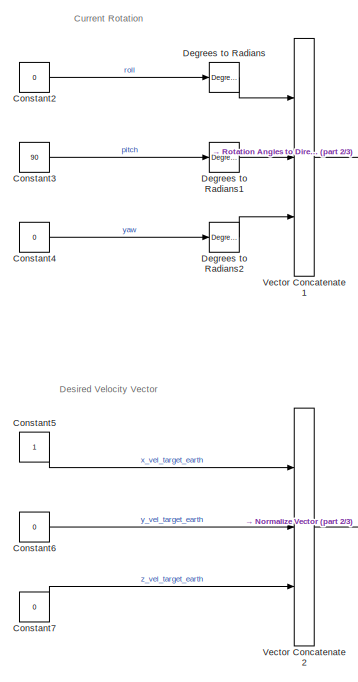
[diagram: root canvas - part 1/3, middle left region]
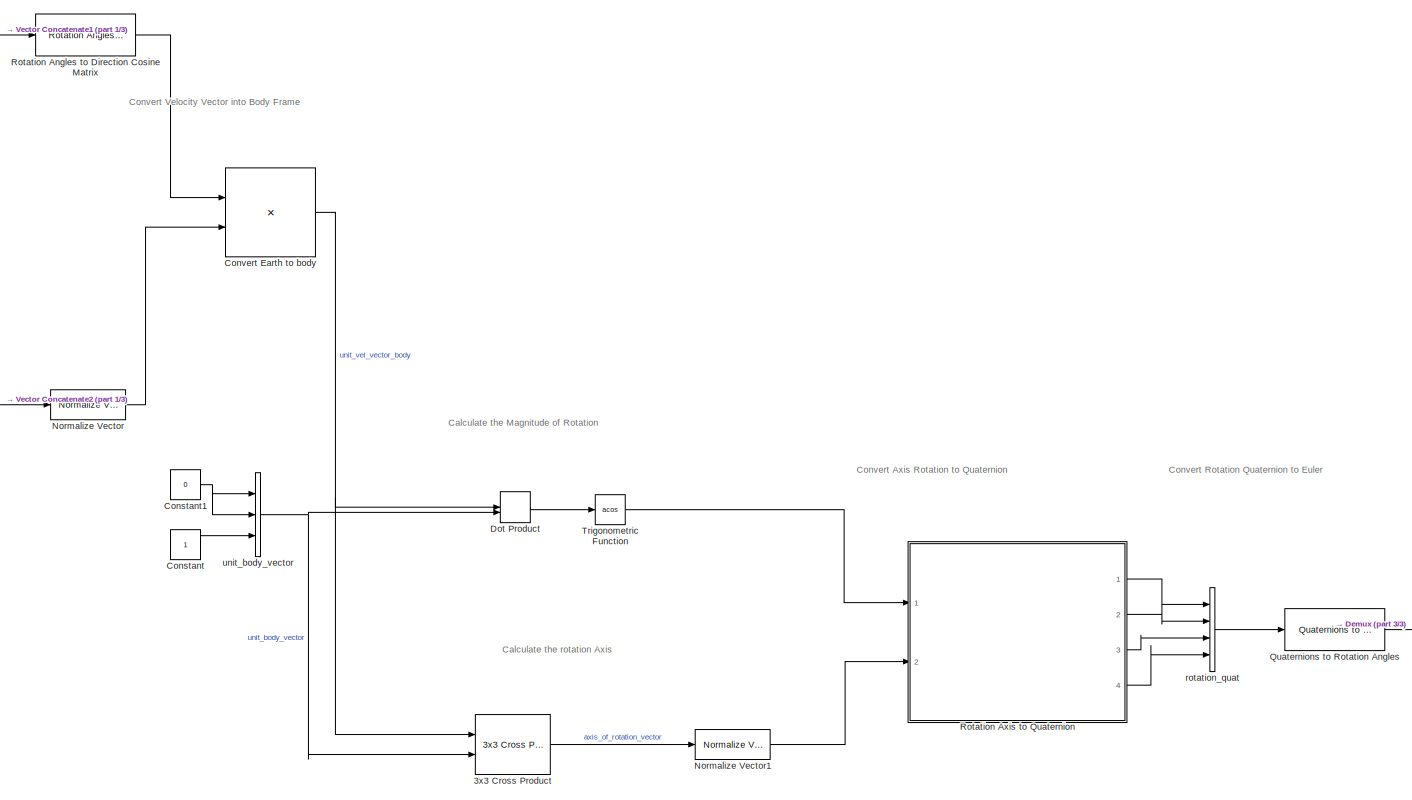
[diagram: root canvas - part 2/3, center side, full height]
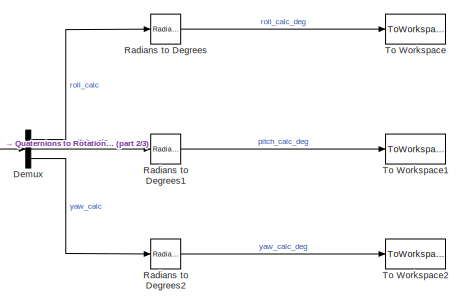
[diagram: root canvas - part 3/3, bottom right region]
MODEL slx_3029f49e60cf
KIND model
CONFIG AbsTol = auto
CONFIG FixedStep = Ts
CONFIG MaxStep = auto
CONFIG MinStep = auto
CONFIG RelTol = 1e-3
CONFIG SampleTimeConstraint = Unconstrained
CONFIG Solver = VariableStepAuto
CONFIG SolverMode = Auto
CONFIG SolverName = VariableStepAuto
CONFIG StartTime = 0.0
CONFIG StopTime = 10
WORKSPACE source: MAT-file member
WORKSPACE MCOS: class17 (value not decoded)
BLOCK [Reference] 3x3 Cross Product  REF=aerolibutil/3x3 Cross Product
  Ports = [2, 1]
  SourceBlock = aerolibutil/3x3 Cross Product
  SourceType = CrossProduct
BLOCK [Constant] Constant
BLOCK [Constant] Constant1
  Value = 0
BLOCK [Constant] Constant2
  Value = 0
BLOCK [Constant] Constant3
  Value = 90
BLOCK [Constant] Constant4
  Value = 0
BLOCK [Constant] Constant5
BLOCK [Constant] Constant6
  Value = 0
BLOCK [Constant] Constant7
  Value = 0
BLOCK [Product] Convert Earth to body
  InputSameDT = off
  Multiplication = Matrix(*)
  OutDataTypeStr = Inherit: Inherit via internal rule
  Ports = [2, 1]
  RndMeth = Floor
  SaturateOnIntegerOverflow = off
BLOCK [Reference] Degrees to Radians  REF=simulink_extras/Transformations/Degrees to
Radians
  Ports = [1, 1]
  SourceBlock = simulink_extras/Transformations/Degrees to\nRadians
  SourceType = DegreesToRadians
BLOCK [Reference] Degrees to Radians1  REF=simulink_extras/Transformations/Degrees to
Radians
  Ports = [1, 1]
  SourceBlock = simulink_extras/Transformations/Degrees to\nRadians
  SourceType = DegreesToRadians
BLOCK [Reference] Degrees to Radians2  REF=simulink_extras/Transformations/Degrees to
Radians
  Ports = [1, 1]
  SourceBlock = simulink_extras/Transformations/Degrees to\nRadians
  SourceType = DegreesToRadians
BLOCK [Demux] Demux
  DisplayOption = bar
  Outputs = 3
  Ports = [1, 3]
BLOCK [DotProduct] Dot Product
  OutDataTypeStr = Inherit: Inherit via internal rule
BLOCK [Reference] Normalize Vector  REF=vrlib/Utilities/Normalize Vector
  Ports = [1, 1]
  SourceBlock = vrlib/Utilities/Normalize Vector
  SourceType = Normalize Vector
BLOCK [Reference] Normalize Vector1  REF=vrlib/Utilities/Normalize Vector
  Ports = [1, 1]
  SourceBlock = vrlib/Utilities/Normalize Vector
  SourceType = Normalize Vector
BLOCK [Reference] Quaternions to Rotation Angles  REF=aerolibtransform2/Quaternions to Rotation Angles
  AttributesFormatString = Rotation Order: %<rotationOrder>
  Ports = [1, 1]
  SourceBlock = aerolibtransform2/Quaternions to Rotation Angles
  SourceType = Quat2Ang
BLOCK [Reference] Radians to Degrees  REF=simulink_extras/Transformations/Radians
to Degrees
  Ports = [1, 1]
  SourceBlock = simulink_extras/Transformations/Radians\nto Degrees
  SourceType = RadiansToDegrees
BLOCK [Reference] Radians to Degrees1  REF=simulink_extras/Transformations/Radians
to Degrees
  Ports = [1, 1]
  SourceBlock = simulink_extras/Transformations/Radians\nto Degrees
  SourceType = RadiansToDegrees
BLOCK [Reference] Radians to Degrees2  REF=simulink_extras/Transformations/Radians
to Degrees
  Ports = [1, 1]
  SourceBlock = simulink_extras/Transformations/Radians\nto Degrees
  SourceType = RadiansToDegrees
BLOCK [Reference] Rotation Angles to Direction Cosine Matrix  REF=aerolibtransform2/Rotation Angles to
Direction Cosine Matrix
  AttributesFormatString = Rotation Order: %<rotationOrder>
  Ports = [1, 1]
  SourceBlock = aerolibtransform2/Rotation Angles to\nDirection Cosine Matrix
  SourceType = Ang2DCM
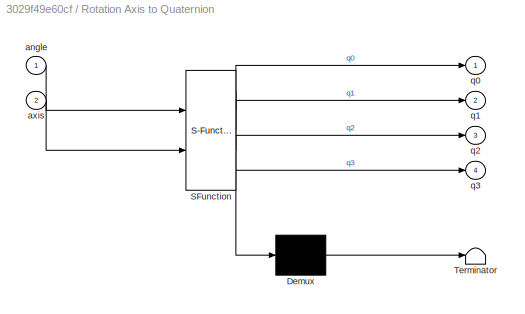
BLOCK [SubSystem] Rotation Axis to Quaternion
  ErrorFcn = Stateflow.Translate.translate
  PermitHierarchicalResolution = ExplicitOnly
  Ports = [2, 4]
  RequestExecContextInheritance = off
  SFBlockType = MATLAB Function
  TreatAsAtomicUnit = on
  Variant = off
BLOCK [Demux] Rotation Axis to Quaternion/ Demux 
  Outputs = 1
  Ports = [1, 1]
BLOCK [S-Function] Rotation Axis to Quaternion/ SFunction 
  EnableBusSupport = on
  FunctionName = sf_sfun
  PortCounts = [2 5]
  Ports = [2, 5]
  SFunctionDeploymentMode = off
  Tag = Stateflow S-Function Tilt_Controller 2
BLOCK [Terminator] Rotation Axis to Quaternion/ Terminator 
BLOCK [Inport] Rotation Axis to Quaternion/angle
  IconDisplay = Port number
BLOCK [Inport] Rotation Axis to Quaternion/axis
  IconDisplay = Port number
  Port = 2
BLOCK [Outport] Rotation Axis to Quaternion/q0
  IconDisplay = Port number
BLOCK [Outport] Rotation Axis to Quaternion/q1
  IconDisplay = Port number
  Port = 2
BLOCK [Outport] Rotation Axis to Quaternion/q2
  IconDisplay = Port number
  Port = 3
BLOCK [Outport] Rotation Axis to Quaternion/q3
  IconDisplay = Port number
  Port = 4
BLOCK [ToWorkspace] To Workspace
  FixptAsFi = on
  MaxDataPoints = inf
  Ports = [1]
  SampleTime = -1
  Save2DSignal = 3-D array (concatenate along third dimension)
  SaveFormat = Timeseries
  VariableName = roll_calc
BLOCK [ToWorkspace] To Workspace1
  FixptAsFi = on
  MaxDataPoints = inf
  Ports = [1]
  SampleTime = -1
  Save2DSignal = 3-D array (concatenate along third dimension)
  SaveFormat = Timeseries
  VariableName = pitch_calc
BLOCK [ToWorkspace] To Workspace2
  FixptAsFi = on
  MaxDataPoints = inf
  Ports = [1]
  SampleTime = -1
  Save2DSignal = 3-D array (concatenate along third dimension)
  SaveFormat = Timeseries
  VariableName = yaw_calc
BLOCK [Trigonometry] Trigonometric Function
  Operator = acos
  Ports = [1, 1]
BLOCK [Concatenate] Vector Concatenate1
  NumInputs = 3
  Ports = [3, 1]
BLOCK [Concatenate] Vector Concatenate2
  NumInputs = 3
  Ports = [3, 1]
BLOCK [Concatenate] rotation_quat
  NumInputs = 4
  Ports = [4, 1]
BLOCK [Concatenate] unit_body_vector
  NumInputs = 3
  Ports = [3, 1]
ANNOTATION (root): Calculate the Magnitude of Rotation
ANNOTATION (root): Calculate the rotation Axis
ANNOTATION (root): Convert Axis Rotation to Quaternion
ANNOTATION (root): Convert Rotation Quaternion to Euler
ANNOTATION (root): Convert Velocity Vector into Body Frame
ANNOTATION (root): Current Rotation
ANNOTATION (root): Desired Velocity Vector
LINE 3x3 Cross Product:1 -> Normalize Vector1:1
NET Constant1:1 -> unit_body_vector:1, unit_body_vector:2
LINE Constant2:1 -> Degrees to Radians:1
LINE Constant3:1 -> Degrees to Radians1:1
LINE Constant4:1 -> Degrees to Radians2:1
LINE Constant5:1 -> Vector Concatenate2:1
LINE Constant6:1 -> Vector Concatenate2:2
LINE Constant7:1 -> Vector Concatenate2:3
LINE Constant:1 -> unit_body_vector:3
NET Convert Earth to body:1 -> 3x3 Cross Product:1, Dot Product:1
LINE Degrees to Radians1:1 -> Vector Concatenate1:2
LINE Degrees to Radians2:1 -> Vector Concatenate1:3
LINE Degrees to Radians:1 -> Vector Concatenate1:1
LINE Demux:1 -> Radians to Degrees:1
LINE Demux:2 -> Radians to Degrees1:1
LINE Demux:3 -> Radians to Degrees2:1
LINE Dot Product:1 -> Trigonometric Function:1
LINE Normalize Vector1:1 -> Rotation Axis to Quaternion:2
LINE Normalize Vector:1 -> Convert Earth to body:2
LINE Quaternions to Rotation Angles:1 -> Demux:1
LINE Radians to Degrees1:1 -> To Workspace1:1
LINE Radians to Degrees2:1 -> To Workspace2:1
LINE Radians to Degrees:1 -> To Workspace:1
LINE Rotation Angles to Direction Cosine Matrix:1 -> Convert Earth to body:1
LINE Rotation Axis to Quaternion:1 -> rotation_quat:1
LINE Rotation Axis to Quaternion:2 -> rotation_quat:2
LINE Rotation Axis to Quaternion:3 -> rotation_quat:3
LINE Rotation Axis to Quaternion:4 -> rotation_quat:4
LINE Trigonometric Function:1 -> Rotation Axis to Quaternion:1
LINE Vector Concatenate1:1 -> Rotation Angles to Direction Cosine Matrix:1
LINE Vector Concatenate2:1 -> Normalize Vector:1
LINE rotation_quat:1 -> Quaternions to Rotation Angles:1
NET unit_body_vector:1 -> 3x3 Cross Product:2, Dot Product:2
note: NET lines group one-source signal fan-out (src -> all destinations, sorted); 1:1 wires keep LINE
CHART Rotation Axis to Quaternion states=1 transitions=1
  STATE_LABEL 'eML_blk_kernel()'
  STATE_LABEL 'SCRIPT:\nfunction [q0, q1, q2, q3]= rotation_axis_to_quaternion(angle, axis)\n%#codegen\n\nq0 = cos(angle/2);\nq1 = axis(1) * sin(angle/2);\nq2 = axis(2) * sin(angle/2);\nq3 = axis(3) * sin(angle/2);\n% q3 = 0;\n\n\n% http://www.euclideanspace.com/maths/geometry/rotations/conversions/angleToQuaternion/index.htm\n% http://www.euclideanspace.com/maths/geometry/rotations/conversions/angleToQuaternion/examples/in...<+7ch>'
